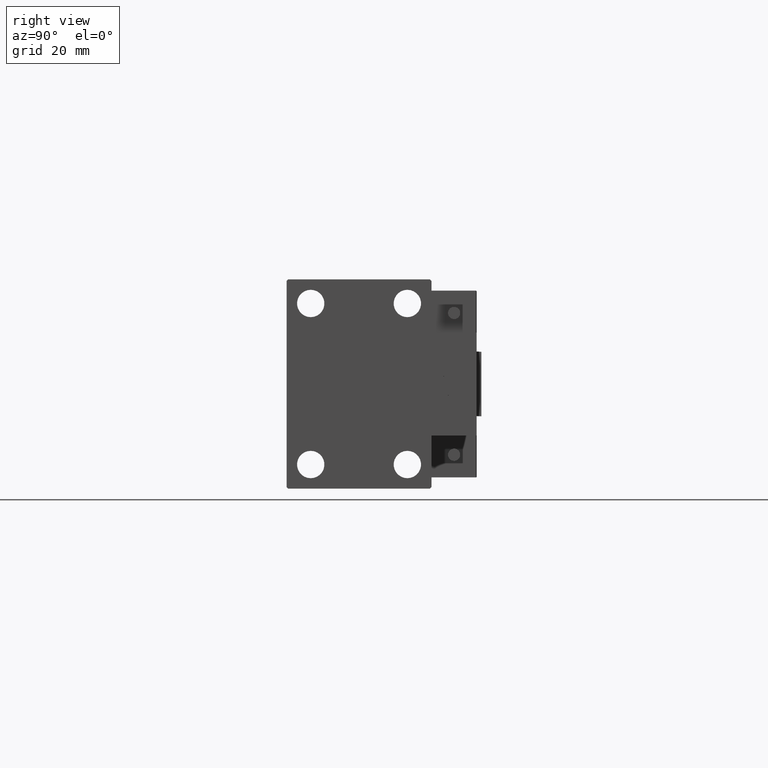
[diagram: clean part render]
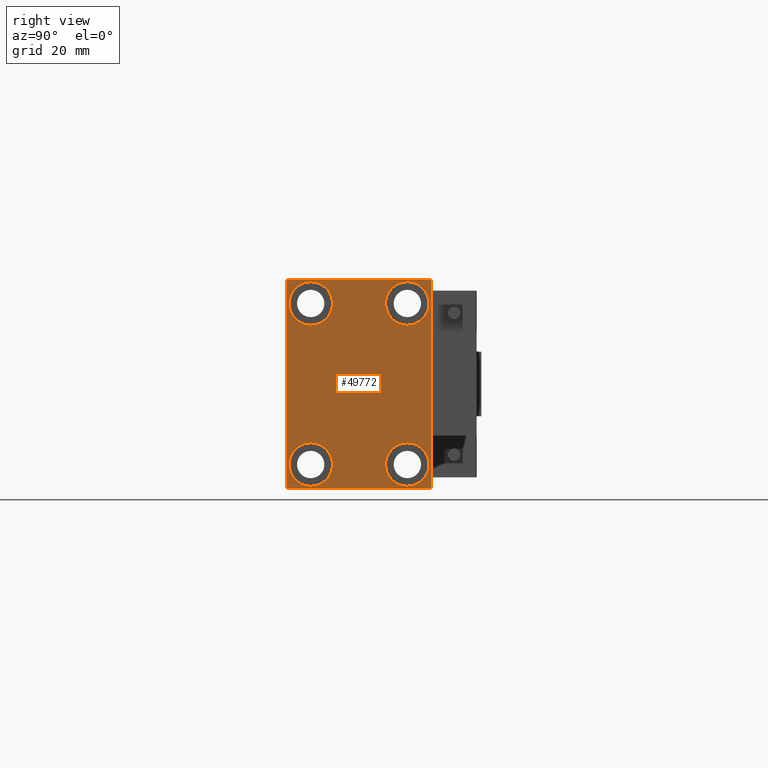
[diagram: same view with one face highlighted and labeled with its STEP entity id]
A machine part, right view. The second image highlights one B-rep face of the part: STEP entity #49772.
In plain terms, the highlighted planar face has unit normal (1, 0, 0).
Its self-contained STEP definition (entity closure, byte-faithful):
#167 = EDGE_CURVE ( 'NONE', #45622, #20909, #44260, .T. ) ;
#279 = CARTESIAN_POINT ( 'NONE',  ( 130.0000000000000000, -14.99999999999999645, 18.25000000000000355 ) ) ;
#374 = AXIS2_PLACEMENT_3D ( 'NONE', #27979, #24890, #24135 ) ;
#924 = AXIS2_PLACEMENT_3D ( 'NONE', #39080, #50366, #3650 ) ;
#1302 = EDGE_CURVE ( 'NONE', #26354, #6590, #10394, .T. ) ;
#2114 = ORIENTED_EDGE ( 'NONE', *, *, #1302, .T. ) ;
#2286 = ORIENTED_EDGE ( 'NONE', *, *, #21679, .T. ) ;
#2799 = VERTEX_POINT ( 'NONE', #37980 ) ;
#2965 = ORIENTED_EDGE ( 'NONE', *, *, #17003, .T. ) ;
#3123 = ORIENTED_EDGE ( 'NONE', *, *, #11071, .T. ) ;
#3393 = FACE_OUTER_BOUND ( 'NONE', #21498, .T. ) ;
#3514 = CARTESIAN_POINT ( 'NONE',  ( 130.0000000000000000, -15.00000000000000355, -25.00000000000000000 ) ) ;
#3650 = DIRECTION ( 'NONE',  ( 0.000000000000000000, 0.000000000000000000, -1.000000000000000000 ) ) ;
#3914 = CARTESIAN_POINT ( 'NONE',  ( 130.0000000000000000, -15.00000000000000355, -25.00000000000000000 ) ) ;
#4066 = DIRECTION ( 'NONE',  ( -1.000000000000000000, -0.000000000000000000, -0.000000000000000000 ) ) ;
#4405 = DIRECTION ( 'NONE',  ( 0.000000000000000000, 0.000000000000000000, 1.000000000000000000 ) ) ;
#4698 = CARTESIAN_POINT ( 'NONE',  ( 130.0000000000000000, 22.00000000000000000, -32.50000000000000711 ) ) ;
#4845 = AXIS2_PLACEMENT_3D ( 'NONE', #18720, #34374, #14863 ) ;
#4865 = AXIS2_PLACEMENT_3D ( 'NONE', #16075, #31734, #46368 ) ;
#5067 = EDGE_LOOP ( 'NONE', ( #27143, #27854 ) ) ;
#5372 = VECTOR ( 'NONE', #34644, 1000.000000000000000 ) ;
#5450 = AXIS2_PLACEMENT_3D ( 'NONE', #3514, #49734, #42789 ) ;
#6134 = VECTOR ( 'NONE', #29739, 1000.000000000000114 ) ;
#6590 = VERTEX_POINT ( 'NONE', #4698 ) ;
#7157 = LINE ( 'NONE', #45682, #5372 ) ;
#7469 = CARTESIAN_POINT ( 'NONE',  ( 130.0000000000000000, 14.99999999999999645, -18.25000000000000355 ) ) ;
#7496 = FACE_BOUND ( 'NONE', #15289, .T. ) ;
#7752 = FACE_BOUND ( 'NONE', #35502, .T. ) ;
#8142 = EDGE_LOOP ( 'NONE', ( #47683, #2286 ) ) ;
#8521 = LINE ( 'NONE', #38827, #38046 ) ;
#8613 = ORIENTED_EDGE ( 'NONE', *, *, #46475, .T. ) ;
#8846 = CARTESIAN_POINT ( 'NONE',  ( 130.0000000000000000, -22.50000000000000711, 31.99999999999999289 ) ) ;
#9085 = VECTOR ( 'NONE', #41448, 1000.000000000000000 ) ;
#9417 = VERTEX_POINT ( 'NONE', #279 ) ;
#9686 = ORIENTED_EDGE ( 'NONE', *, *, #13069, .T. ) ;
#9779 = CIRCLE ( 'NONE', #4845, 6.749999999999999112 ) ;
#10394 = LINE ( 'NONE', #10876, #9085 ) ;
#10876 = CARTESIAN_POINT ( 'NONE',  ( 130.0000000000000000, -22.50000000000000711, -32.50000000000000711 ) ) ;
#11071 = EDGE_CURVE ( 'NONE', #18734, #48213, #8521, .T. ) ;
#11380 = DIRECTION ( 'NONE',  ( -0.000000000000000000, 0.7071067811865474617, 0.7071067811865474617 ) ) ;
#11468 = ORIENTED_EDGE ( 'NONE', *, *, #35526, .T. ) ;
#12282 = CARTESIAN_POINT ( 'NONE',  ( 130.0000000000000000, -22.00000000000003197, -32.50000000000000711 ) ) ;
#12287 = CARTESIAN_POINT ( 'NONE',  ( 130.0000000000000000, -14.99999999999999645, 25.00000000000000000 ) ) ;
#13069 = EDGE_CURVE ( 'NONE', #20909, #45622, #20895, .T. ) ;
#13511 = EDGE_CURVE ( 'NONE', #9417, #15229, #48772, .T. ) ;
#13565 = CARTESIAN_POINT ( 'NONE',  ( 130.0000000000000000, 15.00000000000000355, 31.75000000000000000 ) ) ;
#13788 = ORIENTED_EDGE ( 'NONE', *, *, #18020, .T. ) ;
#14863 = DIRECTION ( 'NONE',  ( 0.000000000000000000, 0.000000000000000000, 1.000000000000000000 ) ) ;
#14971 = FACE_BOUND ( 'NONE', #5067, .T. ) ;
#15229 = VERTEX_POINT ( 'NONE', #27565 ) ;
#15241 = ORIENTED_EDGE ( 'NONE', *, *, #26463, .T. ) ;
#15289 = EDGE_LOOP ( 'NONE', ( #29723, #9686 ) ) ;
#15488 = CARTESIAN_POINT ( 'NONE',  ( 130.0000000000000000, 27.25000000000000711, -27.25000000000000711 ) ) ;
#16075 = CARTESIAN_POINT ( 'NONE',  ( 130.0000000000000000, 14.99999999999999645, -25.00000000000000000 ) ) ;
#16103 = CARTESIAN_POINT ( 'NONE',  ( 130.0000000000000000, -22.50000000000000711, -32.00000000000002132 ) ) ;
#17003 = EDGE_CURVE ( 'NONE', #2799, #30604, #20459, .T. ) ;
#17418 = CARTESIAN_POINT ( 'NONE',  ( 130.0000000000000000, -27.25000000000033040, -27.24999999999957367 ) ) ;
#18020 = EDGE_CURVE ( 'NONE', #6590, #40386, #38836, .T. ) ;
#18720 = CARTESIAN_POINT ( 'NONE',  ( 130.0000000000000000, 14.99999999999999645, -25.00000000000000000 ) ) ;
#18734 = VERTEX_POINT ( 'NONE', #20472 ) ;
#19035 = CARTESIAN_POINT ( 'NONE',  ( 130.0000000000000000, 22.49999999999999289, 32.50000000000000000 ) ) ;
#19643 = LINE ( 'NONE', #46587, #21353 ) ;
#19910 = AXIS2_PLACEMENT_3D ( 'NONE', #3914, #27802, #39857 ) ;
#20459 = CIRCLE ( 'NONE', #4865, 6.749999999999999112 ) ;
#20472 = CARTESIAN_POINT ( 'NONE',  ( 130.0000000000000000, 22.49999999999999289, 32.00000000000004974 ) ) ;
#20611 = EDGE_CURVE ( 'NONE', #40386, #18734, #7157, .T. ) ;
#20682 = VECTOR ( 'NONE', #42636, 1000.000000000000000 ) ;
#20895 = CIRCLE ( 'NONE', #374, 6.749999999999999112 ) ;
#20909 = VERTEX_POINT ( 'NONE', #13565 ) ;
#20994 = CIRCLE ( 'NONE', #50468, 6.749999999999999112 ) ;
#21254 = LINE ( 'NONE', #32807, #22837 ) ;
#21353 = VECTOR ( 'NONE', #50685, 1000.000000000000000 ) ;
#21498 = EDGE_LOOP ( 'NONE', ( #23197, #15241, #11468, #8613, #2114, #13788, #36201, #3123 ) ) ;
#21679 = EDGE_CURVE ( 'NONE', #15229, #9417, #20994, .T. ) ;
#22033 = CARTESIAN_POINT ( 'NONE',  ( 130.0000000000000000, -15.00000000000000355, -31.75000000000000000 ) ) ;
#22556 = EDGE_CURVE ( 'NONE', #26484, #30439, #30853, .T. ) ;
#22687 = FACE_BOUND ( 'NONE', #8142, .T. ) ;
#22837 = VECTOR ( 'NONE', #48715, 1000.000000000000114 ) ;
#23197 = ORIENTED_EDGE ( 'NONE', *, *, #39672, .T. ) ;
#23354 = VERTEX_POINT ( 'NONE', #37683 ) ;
#23439 = DIRECTION ( 'NONE',  ( -1.000000000000000000, -0.000000000000000000, -0.000000000000000000 ) ) ;
#24135 = DIRECTION ( 'NONE',  ( 0.000000000000000000, 0.000000000000000000, 1.000000000000000000 ) ) ;
#24722 = VECTOR ( 'NONE', #11380, 1000.000000000000114 ) ;
#24890 = DIRECTION ( 'NONE',  ( -1.000000000000000000, -0.000000000000000000, -0.000000000000000000 ) ) ;
#25515 = VERTEX_POINT ( 'NONE', #16103 ) ;
#26354 = VERTEX_POINT ( 'NONE', #12282 ) ;
#26463 = EDGE_CURVE ( 'NONE', #23354, #35655, #21254, .T. ) ;
#26484 = VERTEX_POINT ( 'NONE', #22033 ) ;
#27143 = ORIENTED_EDGE ( 'NONE', *, *, #22556, .T. ) ;
#27565 = CARTESIAN_POINT ( 'NONE',  ( 130.0000000000000000, -14.99999999999999645, 31.75000000000000000 ) ) ;
#27802 = DIRECTION ( 'NONE',  ( -1.000000000000000000, -0.000000000000000000, -0.000000000000000000 ) ) ;
#27854 = ORIENTED_EDGE ( 'NONE', *, *, #42381, .T. ) ;
#27979 = CARTESIAN_POINT ( 'NONE',  ( 130.0000000000000000, 15.00000000000000355, 25.00000000000000000 ) ) ;
#28854 = EDGE_CURVE ( 'NONE', #30604, #2799, #9779, .T. ) ;
#29723 = ORIENTED_EDGE ( 'NONE', *, *, #167, .T. ) ;
#29739 = DIRECTION ( 'NONE',  ( -0.000000000000000000, 0.7071067811865376918, -0.7071067811865573427 ) ) ;
#30439 = VERTEX_POINT ( 'NONE', #31415 ) ;
#30521 = CARTESIAN_POINT ( 'NONE',  ( 130.0000000000000000, 15.00000000000000355, 25.00000000000000000 ) ) ;
#30560 = CARTESIAN_POINT ( 'NONE',  ( 130.0000000000000000, 22.00000000000002132, 32.50000000000000000 ) ) ;
#30604 = VERTEX_POINT ( 'NONE', #7469 ) ;
#30853 = CIRCLE ( 'NONE', #5450, 6.749999999999999112 ) ;
#31378 = PLANE ( 'NONE',  #924 ) ;
#31384 = DIRECTION ( 'NONE',  ( -0.000000000000000000, -0.7071067811865622277, 0.7071067811865328068 ) ) ;
#31415 = CARTESIAN_POINT ( 'NONE',  ( 130.0000000000000000, -15.00000000000000355, -18.25000000000000355 ) ) ;
#31734 = DIRECTION ( 'NONE',  ( -1.000000000000000000, -0.000000000000000000, -0.000000000000000000 ) ) ;
#32807 = CARTESIAN_POINT ( 'NONE',  ( 130.0000000000000000, -27.25000000000000000, 27.25000000000000000 ) ) ;
#34374 = DIRECTION ( 'NONE',  ( -1.000000000000000000, -0.000000000000000000, -0.000000000000000000 ) ) ;
#34644 = DIRECTION ( 'NONE',  ( 0.000000000000000000, -1.067522139062650425E-16, 1.000000000000000000 ) ) ;
#35502 = EDGE_LOOP ( 'NONE', ( #2965, #48699 ) ) ;
#35526 = EDGE_CURVE ( 'NONE', #35655, #25515, #19643, .T. ) ;
#35655 = VERTEX_POINT ( 'NONE', #8846 ) ;
#36163 = DIRECTION ( 'NONE',  ( 0.000000000000000000, 0.000000000000000000, 1.000000000000000000 ) ) ;
#36201 = ORIENTED_EDGE ( 'NONE', *, *, #20611, .T. ) ;
#36921 = LINE ( 'NONE', #17418, #6134 ) ;
#37683 = CARTESIAN_POINT ( 'NONE',  ( 130.0000000000000000, -21.99999999999999289, 32.49999999999999289 ) ) ;
#37980 = CARTESIAN_POINT ( 'NONE',  ( 130.0000000000000000, 14.99999999999999645, -31.75000000000000000 ) ) ;
#38046 = VECTOR ( 'NONE', #31384, 1000.000000000000000 ) ;
#38827 = CARTESIAN_POINT ( 'NONE',  ( 130.0000000000000000, 27.24999999999955236, 27.25000000000068567 ) ) ;
#38836 = LINE ( 'NONE', #15488, #24722 ) ;
#38950 = AXIS2_PLACEMENT_3D ( 'NONE', #47274, #23439, #4405 ) ;
#39080 = CARTESIAN_POINT ( 'NONE',  ( 130.0000000000000000, 0.000000000000000000, 0.000000000000000000 ) ) ;
#39672 = EDGE_CURVE ( 'NONE', #48213, #23354, #50072, .T. ) ;
#39857 = DIRECTION ( 'NONE',  ( 0.000000000000000000, 0.000000000000000000, 1.000000000000000000 ) ) ;
#40386 = VERTEX_POINT ( 'NONE', #41970 ) ;
#41448 = DIRECTION ( 'NONE',  ( 0.000000000000000000, 1.000000000000000000, 0.000000000000000000 ) ) ;
#41970 = CARTESIAN_POINT ( 'NONE',  ( 130.0000000000000000, 22.50000000000000000, -32.00000000000002132 ) ) ;
#42381 = EDGE_CURVE ( 'NONE', #30439, #26484, #49444, .T. ) ;
#42636 = DIRECTION ( 'NONE',  ( 0.000000000000000000, -1.000000000000000000, -1.541976423090495387E-16 ) ) ;
#42789 = DIRECTION ( 'NONE',  ( 0.000000000000000000, 0.000000000000000000, 1.000000000000000000 ) ) ;
#44260 = CIRCLE ( 'NONE', #48359, 6.749999999999999112 ) ;
#45622 = VERTEX_POINT ( 'NONE', #49107 ) ;
#45682 = CARTESIAN_POINT ( 'NONE',  ( 130.0000000000000000, 22.50000000000000000, -32.50000000000000711 ) ) ;
#46157 = DIRECTION ( 'NONE',  ( -1.000000000000000000, -0.000000000000000000, -0.000000000000000000 ) ) ;
#46368 = DIRECTION ( 'NONE',  ( 0.000000000000000000, 0.000000000000000000, 1.000000000000000000 ) ) ;
#46475 = EDGE_CURVE ( 'NONE', #25515, #26354, #36921, .T. ) ;
#46587 = CARTESIAN_POINT ( 'NONE',  ( 130.0000000000000000, -22.50000000000000711, 32.49999999999999289 ) ) ;
#47274 = CARTESIAN_POINT ( 'NONE',  ( 130.0000000000000000, -14.99999999999999645, 25.00000000000000000 ) ) ;
#47683 = ORIENTED_EDGE ( 'NONE', *, *, #13511, .T. ) ;
#48213 = VERTEX_POINT ( 'NONE', #30560 ) ;
#48359 = AXIS2_PLACEMENT_3D ( 'NONE', #30521, #46157, #50751 ) ;
#48699 = ORIENTED_EDGE ( 'NONE', *, *, #28854, .T. ) ;
#48715 = DIRECTION ( 'NONE',  ( 0.000000000000000000, -0.7071067811865474617, -0.7071067811865474617 ) ) ;
#48772 = CIRCLE ( 'NONE', #38950, 6.749999999999999112 ) ;
#49107 = CARTESIAN_POINT ( 'NONE',  ( 130.0000000000000000, 15.00000000000000355, 18.25000000000000355 ) ) ;
#49444 = CIRCLE ( 'NONE', #19910, 6.749999999999999112 ) ;
#49734 = DIRECTION ( 'NONE',  ( -1.000000000000000000, -0.000000000000000000, -0.000000000000000000 ) ) ;
#49772 = ADVANCED_FACE ( 'NONE', ( #7752, #22687, #7496, #14971, #3393 ), #31378, .T. ) ;
#50072 = LINE ( 'NONE', #19035, #20682 ) ;
#50366 = DIRECTION ( 'NONE',  ( 1.000000000000000000, 0.000000000000000000, 0.000000000000000000 ) ) ;
#50468 = AXIS2_PLACEMENT_3D ( 'NONE', #12287, #4066, #36163 ) ;
#50685 = DIRECTION ( 'NONE',  ( 0.000000000000000000, 0.000000000000000000, -1.000000000000000000 ) ) ;
#50751 = DIRECTION ( 'NONE',  ( 0.000000000000000000, 0.000000000000000000, 1.000000000000000000 ) ) ;